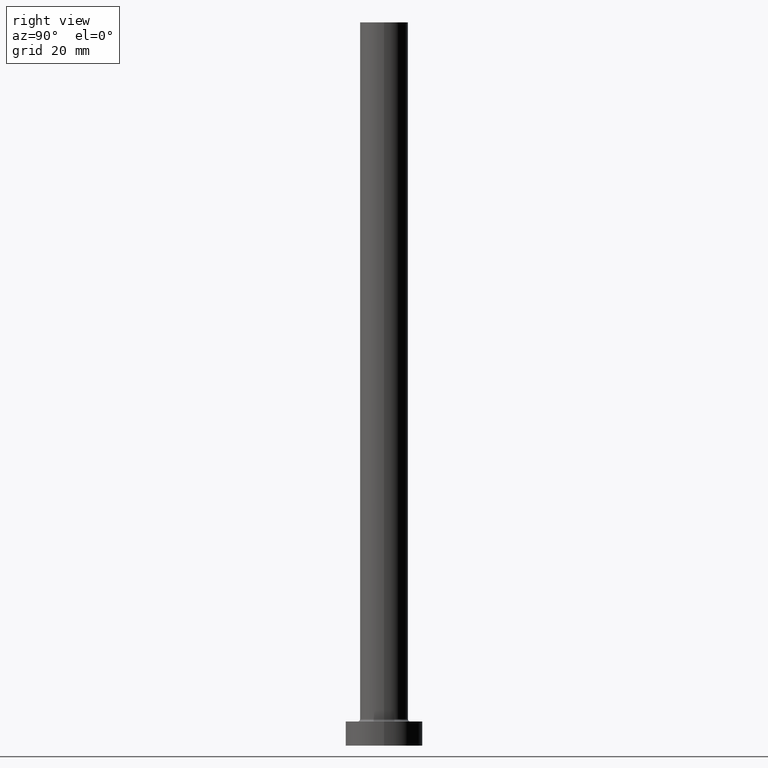
[diagram: clean part render]
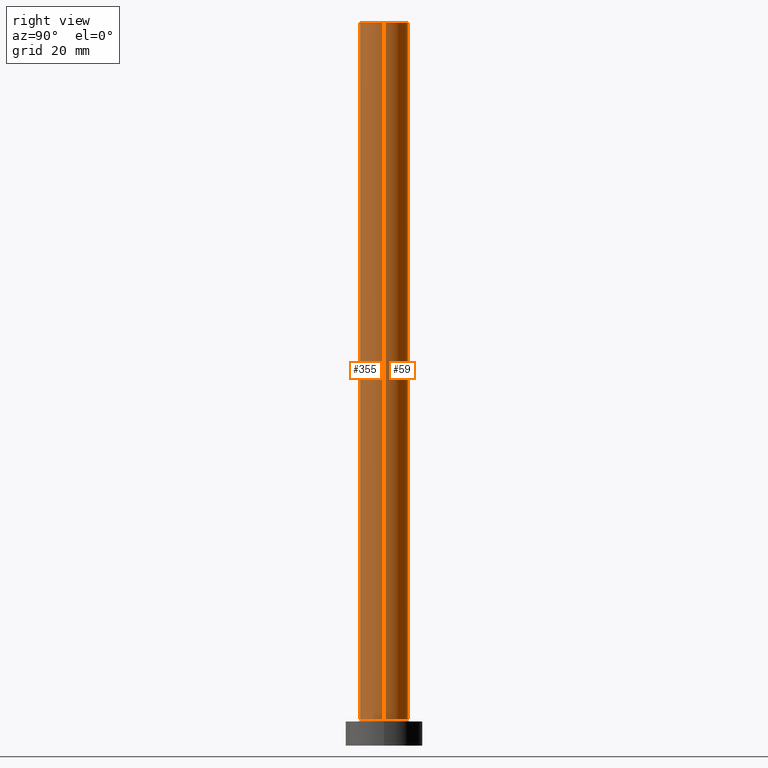
[diagram: same view with one multi-face feature highlighted, each face labeled with its STEP entity id]
A machine part, right view. The highlighted faces form ONE feature: a constant-radius fillet chain: 2 tangent blend faces with common blend radius 5 mm. The faces share edges in the B-rep.
Their STEP definitions:
[1] entity #355 (Cylinder):
#3 = ORIENTED_EDGE ( 'NONE', *, *, #178, .T. ) ;
#6 = VERTEX_POINT ( 'NONE', #164 ) ;
#12 = VERTEX_POINT ( 'NONE', #343 ) ;
#39 = DIRECTION ( 'NONE',  ( 1.000000000000000000, 0.000000000000000000, 0.000000000000000000 ) ) ;
#46 = DIRECTION ( 'NONE',  ( 0.000000000000000000, 0.000000000000000000, 1.000000000000000000 ) ) ;
#70 = ORIENTED_EDGE ( 'NONE', *, *, #151, .F. ) ;
#75 = AXIS2_PLACEMENT_3D ( 'NONE', #420, #200, #344 ) ;
#125 = DIRECTION ( 'NONE',  ( 0.000000000000000000, 0.000000000000000000, 1.000000000000000000 ) ) ;
#140 = CARTESIAN_POINT ( 'NONE',  ( -5.000000000000000000, 0.000000000000000000, 5.500000000000005329 ) ) ;
#151 = EDGE_CURVE ( 'NONE', #404, #6, #452, .T. ) ;
#154 = DIRECTION ( 'NONE',  ( -0.000000000000000000, -0.000000000000000000, -1.000000000000000000 ) ) ;
#157 = VERTEX_POINT ( 'NONE', #140 ) ;
#162 = CIRCLE ( 'NONE', #418, 5.000000000000000000 ) ;
#164 = CARTESIAN_POINT ( 'NONE',  ( 5.000000000000000000, 6.123233995736766282E-16, 5.500000000000005329 ) ) ;
#178 = EDGE_CURVE ( 'NONE', #157, #6, #162, .T. ) ;
#200 = DIRECTION ( 'NONE',  ( -0.000000000000000000, -0.000000000000000000, -1.000000000000000000 ) ) ;
#205 = EDGE_CURVE ( 'NONE', #12, #157, #293, .T. ) ;
#213 = DIRECTION ( 'NONE',  ( 1.000000000000000000, 0.000000000000000000, 0.000000000000000000 ) ) ;
#231 = VECTOR ( 'NONE', #154, 1000.000000000000000 ) ;
#263 = VECTOR ( 'NONE', #321, 1000.000000000000000 ) ;
#276 = CYLINDRICAL_SURFACE ( 'NONE', #75, 5.000000000000000000 ) ;
#284 = AXIS2_PLACEMENT_3D ( 'NONE', #288, #125, #213 ) ;
#288 = CARTESIAN_POINT ( 'NONE',  ( 0.000000000000000000, 0.000000000000000000, 150.0000000000000000 ) ) ;
#293 = LINE ( 'NONE', #334, #231 ) ;
#315 = ORIENTED_EDGE ( 'NONE', *, *, #205, .T. ) ;
#321 = DIRECTION ( 'NONE',  ( -0.000000000000000000, -0.000000000000000000, -1.000000000000000000 ) ) ;
#325 = CARTESIAN_POINT ( 'NONE',  ( 0.000000000000000000, 0.000000000000000000, 5.500000000000005329 ) ) ;
#334 = CARTESIAN_POINT ( 'NONE',  ( -5.000000000000000000, 0.000000000000000000, 150.0000000000000000 ) ) ;
#343 = CARTESIAN_POINT ( 'NONE',  ( -5.000000000000000000, 0.000000000000000000, 150.0000000000000000 ) ) ;
#344 = DIRECTION ( 'NONE',  ( -1.000000000000000000, 0.000000000000000000, 0.000000000000000000 ) ) ;
#355 = ADVANCED_FACE ( 'NONE', ( #359 ), #276, .T. ) ;
#359 = FACE_OUTER_BOUND ( 'NONE', #443, .T. ) ;
#375 = ORIENTED_EDGE ( 'NONE', *, *, #393, .F. ) ;
#384 = CARTESIAN_POINT ( 'NONE',  ( 5.000000000000000000, 6.123233995736766282E-16, 150.0000000000000000 ) ) ;
#385 = CIRCLE ( 'NONE', #284, 5.000000000000000000 ) ;
#393 = EDGE_CURVE ( 'NONE', #12, #404, #385, .T. ) ;
#404 = VERTEX_POINT ( 'NONE', #461 ) ;
#418 = AXIS2_PLACEMENT_3D ( 'NONE', #325, #46, #39 ) ;
#420 = CARTESIAN_POINT ( 'NONE',  ( 0.000000000000000000, 0.000000000000000000, 150.0000000000000000 ) ) ;
#443 = EDGE_LOOP ( 'NONE', ( #70, #375, #315, #3 ) ) ;
#452 = LINE ( 'NONE', #384, #263 ) ;
#461 = CARTESIAN_POINT ( 'NONE',  ( 5.000000000000000000, 6.123233995736766282E-16, 150.0000000000000000 ) ) ;
[2] entity #59 (Cylinder):
#1 = DIRECTION ( 'NONE',  ( 0.000000000000000000, 0.000000000000000000, 1.000000000000000000 ) ) ;
#6 = VERTEX_POINT ( 'NONE', #164 ) ;
#12 = VERTEX_POINT ( 'NONE', #343 ) ;
#59 = ADVANCED_FACE ( 'NONE', ( #135 ), #193, .T. ) ;
#63 = AXIS2_PLACEMENT_3D ( 'NONE', #185, #1, #287 ) ;
#108 = CIRCLE ( 'NONE', #253, 5.000000000000000000 ) ;
#111 = DIRECTION ( 'NONE',  ( 1.000000000000000000, 0.000000000000000000, 0.000000000000000000 ) ) ;
#116 = ORIENTED_EDGE ( 'NONE', *, *, #218, .F. ) ;
#135 = FACE_OUTER_BOUND ( 'NONE', #275, .T. ) ;
#140 = CARTESIAN_POINT ( 'NONE',  ( -5.000000000000000000, 0.000000000000000000, 5.500000000000005329 ) ) ;
#141 = ORIENTED_EDGE ( 'NONE', *, *, #151, .T. ) ;
#151 = EDGE_CURVE ( 'NONE', #404, #6, #452, .T. ) ;
#154 = DIRECTION ( 'NONE',  ( -0.000000000000000000, -0.000000000000000000, -1.000000000000000000 ) ) ;
#157 = VERTEX_POINT ( 'NONE', #140 ) ;
#164 = CARTESIAN_POINT ( 'NONE',  ( 5.000000000000000000, 6.123233995736766282E-16, 5.500000000000005329 ) ) ;
#185 = CARTESIAN_POINT ( 'NONE',  ( 0.000000000000000000, 0.000000000000000000, 5.500000000000005329 ) ) ;
#188 = EDGE_CURVE ( 'NONE', #6, #157, #290, .T. ) ;
#193 = CYLINDRICAL_SURFACE ( 'NONE', #257, 5.000000000000000000 ) ;
#205 = EDGE_CURVE ( 'NONE', #12, #157, #293, .T. ) ;
#214 = CARTESIAN_POINT ( 'NONE',  ( 0.000000000000000000, 0.000000000000000000, 150.0000000000000000 ) ) ;
#218 = EDGE_CURVE ( 'NONE', #404, #12, #108, .T. ) ;
#223 = ORIENTED_EDGE ( 'NONE', *, *, #205, .F. ) ;
#226 = DIRECTION ( 'NONE',  ( -1.000000000000000000, 0.000000000000000000, 0.000000000000000000 ) ) ;
#230 = DIRECTION ( 'NONE',  ( -0.000000000000000000, -0.000000000000000000, -1.000000000000000000 ) ) ;
#231 = VECTOR ( 'NONE', #154, 1000.000000000000000 ) ;
#244 = ORIENTED_EDGE ( 'NONE', *, *, #188, .T. ) ;
#249 = DIRECTION ( 'NONE',  ( 0.000000000000000000, 0.000000000000000000, 1.000000000000000000 ) ) ;
#253 = AXIS2_PLACEMENT_3D ( 'NONE', #214, #249, #111 ) ;
#257 = AXIS2_PLACEMENT_3D ( 'NONE', #336, #230, #226 ) ;
#263 = VECTOR ( 'NONE', #321, 1000.000000000000000 ) ;
#275 = EDGE_LOOP ( 'NONE', ( #116, #141, #244, #223 ) ) ;
#287 = DIRECTION ( 'NONE',  ( 1.000000000000000000, 0.000000000000000000, 0.000000000000000000 ) ) ;
#290 = CIRCLE ( 'NONE', #63, 5.000000000000000000 ) ;
#293 = LINE ( 'NONE', #334, #231 ) ;
#321 = DIRECTION ( 'NONE',  ( -0.000000000000000000, -0.000000000000000000, -1.000000000000000000 ) ) ;
#334 = CARTESIAN_POINT ( 'NONE',  ( -5.000000000000000000, 0.000000000000000000, 150.0000000000000000 ) ) ;
#336 = CARTESIAN_POINT ( 'NONE',  ( 0.000000000000000000, 0.000000000000000000, 150.0000000000000000 ) ) ;
#343 = CARTESIAN_POINT ( 'NONE',  ( -5.000000000000000000, 0.000000000000000000, 150.0000000000000000 ) ) ;
#384 = CARTESIAN_POINT ( 'NONE',  ( 5.000000000000000000, 6.123233995736766282E-16, 150.0000000000000000 ) ) ;
#404 = VERTEX_POINT ( 'NONE', #461 ) ;
#452 = LINE ( 'NONE', #384, #263 ) ;
#461 = CARTESIAN_POINT ( 'NONE',  ( 5.000000000000000000, 6.123233995736766282E-16, 150.0000000000000000 ) ) ;